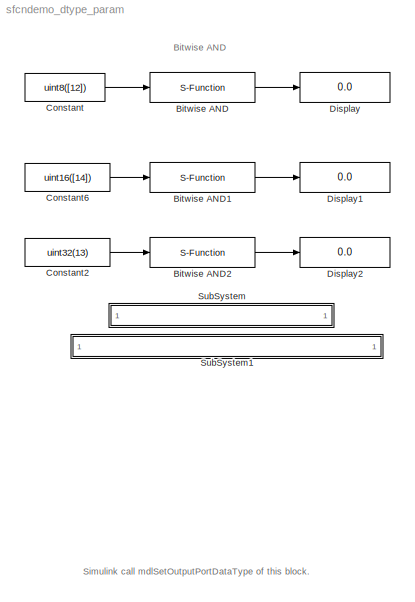
MODEL sfcndemo_dtype_param
KIND model
BLOCK [S-Function] Bitwise AND
  AttributesFormatString = %<Parameters>
  FunctionName = sfun_dtype_param
  Parameters = uint8(11)
  Ports = [1, 1]
BLOCK [S-Function] Bitwise AND1
  AttributesFormatString = %<Parameters>
  FunctionName = sfun_dtype_param
  Parameters = uint16(7)
  Ports = [1, 1]
BLOCK [S-Function] Bitwise AND2
  AttributesFormatString = %<Parameters>
  FunctionName = sfun_dtype_param
  Parameters = uint32(6)
  Ports = [1, 1]
BLOCK [Constant] Constant
  Value = uint8([12])
BLOCK [Constant] Constant2
  Value = uint32(13)
BLOCK [Constant] Constant6
  Value = uint16([14])
BLOCK [Display] Display
  Decimation = 1
  Ports = [1]
BLOCK [Display] Display1
  Decimation = 1
  Ports = [1]
BLOCK [Display] Display2
  Decimation = 1
  Ports = [1]
BLOCK [SubSystem] SubSystem
  MaskDisplay = disp('matlabroot<path>');
  MaskIconFrame = on
  MaskIconOpaque = on
  MaskIconRotate = none
  MaskIconUnits = autoscale
  MinAlgLoopOccurrences = off
  OpenFcn = edit(fullfile(matlabroot,'simulink','src','sfun_dtype_param.c'))
  Ports = []
  PropExecContextAcrossSSBoundary = on
  RTWSystemCode = Auto
  TreatAsAtomicUnit = off
BLOCK [SubSystem] SubSystem1
  MaskDisplay = disp('matlabroot<path>');
  MaskIconFrame = on
  MaskIconOpaque = on
  MaskIconRotate = none
  MaskIconUnits = autoscale
  MinAlgLoopOccurrences = off
  OpenFcn = edit(fullfile(matlabroot,'toolbox','simulink','blocks','tlc_c','sfun_dtype_param.tlc'))
  Ports = []
  PropExecContextAcrossSSBoundary = on
  RTWSystemCode = Auto
  TreatAsAtomicUnit = off
ANNOTATION (root): Bitwise AND
ANNOTATION (root): Simulink call mdlSetOutputPortDataType of this block.
LINE Bitwise AND1:1 -> Display1:1
LINE Bitwise AND2:1 -> Display2:1
LINE Bitwise AND:1 -> Display:1
LINE Constant2:1 -> Bitwise AND2:1
LINE Constant6:1 -> Bitwise AND1:1
LINE Constant:1 -> Bitwise AND:1
note: 2 file-system paths scrubbed to <path> (not preserved elsewhere — flat text is the only slx artifact)
